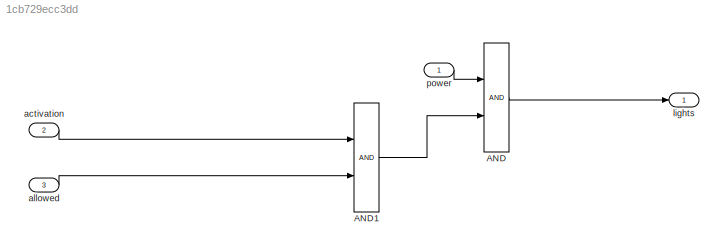
MODEL slx_1cb729ecc3dd
KIND model
CONFIG AbsTol = auto
CONFIG EnableMultiTasking = off
CONFIG FixedStep = auto
CONFIG MaxStep = auto
CONFIG MinStep = auto
CONFIG RelTol = 1e-3
CONFIG SampleTimeConstraint = Unconstrained
CONFIG Solver = FixedStepAuto
CONFIG SolverName = FixedStepAuto
CONFIG StartTime = 0.0
CONFIG StopTime = 100
BLOCK [Logic] AND
  AllPortsSameDT = off
  OutDataTypeStr = boolean
  Ports = [2, 1]
BLOCK [Logic] AND1
  AllPortsSameDT = off
  OutDataTypeStr = boolean
  Ports = [2, 1]
BLOCK [Inport] activation
  IconDisplay = Port number
  Port = 2
BLOCK [Inport] allowed
  IconDisplay = Port number
  Port = 3
BLOCK [Outport] lights
  IconDisplay = Port number
BLOCK [Inport] power
  IconDisplay = Port number
LINE AND1:1 -> AND:2
LINE AND:1 -> lights:1
LINE activation:1 -> AND1:1
LINE allowed:1 -> AND1:2
LINE power:1 -> AND:1
